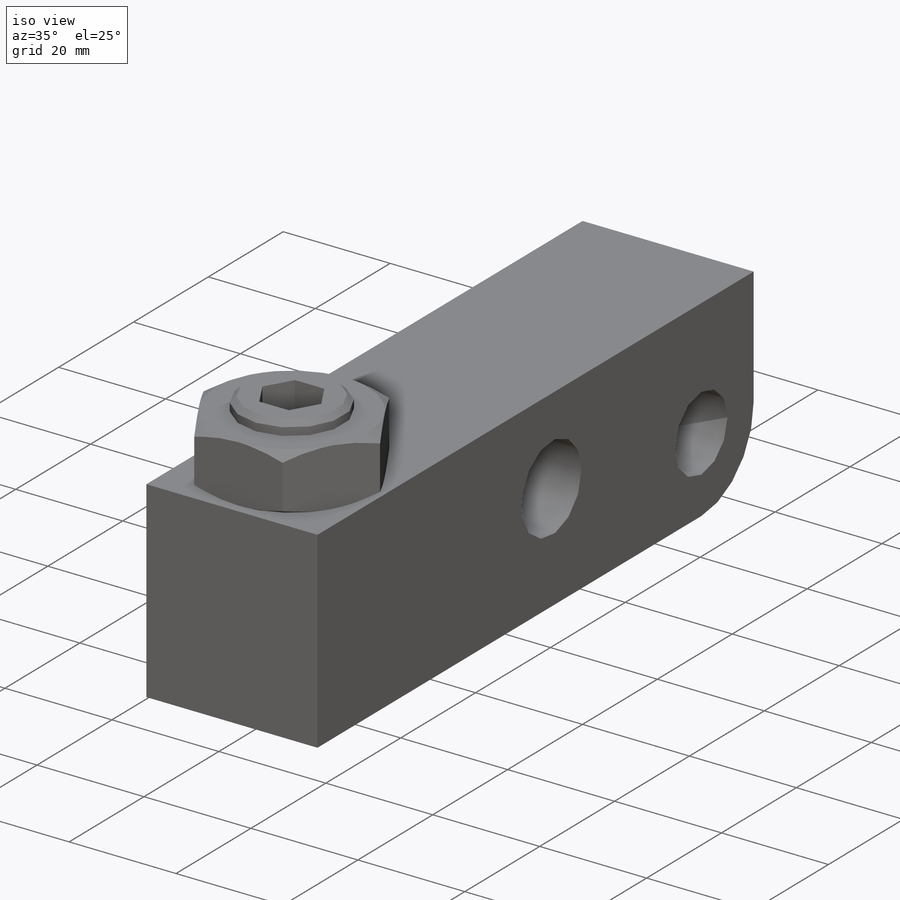
[diagram: iso view]
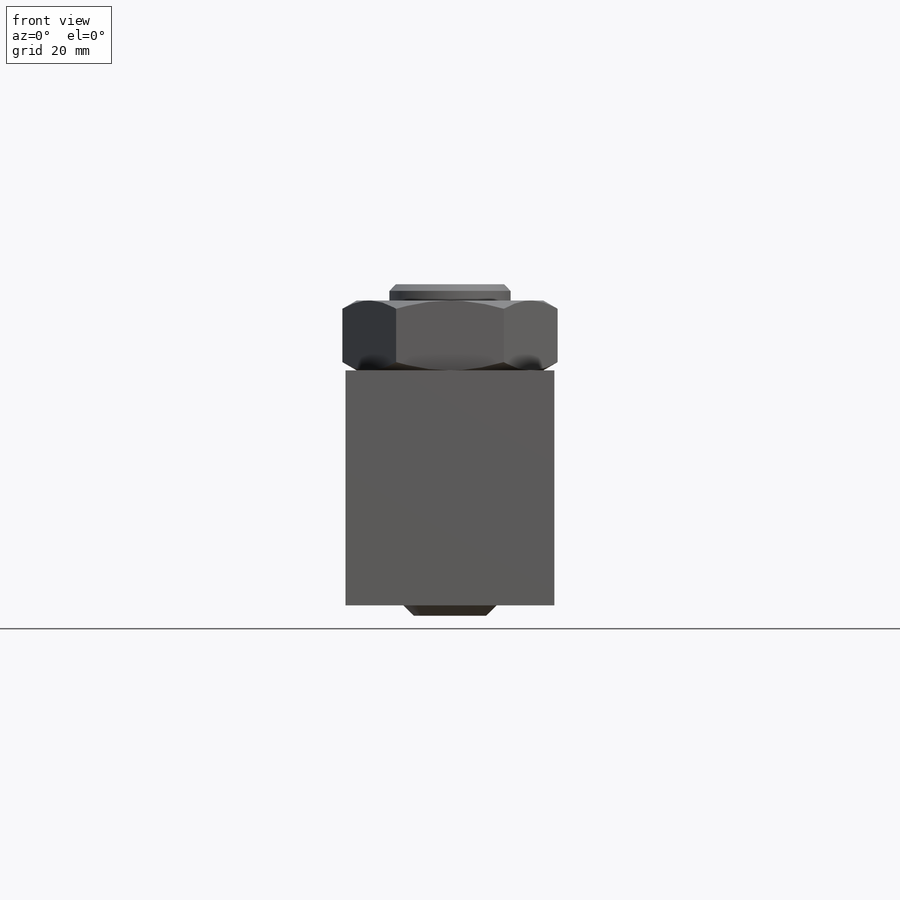
[diagram: front view]
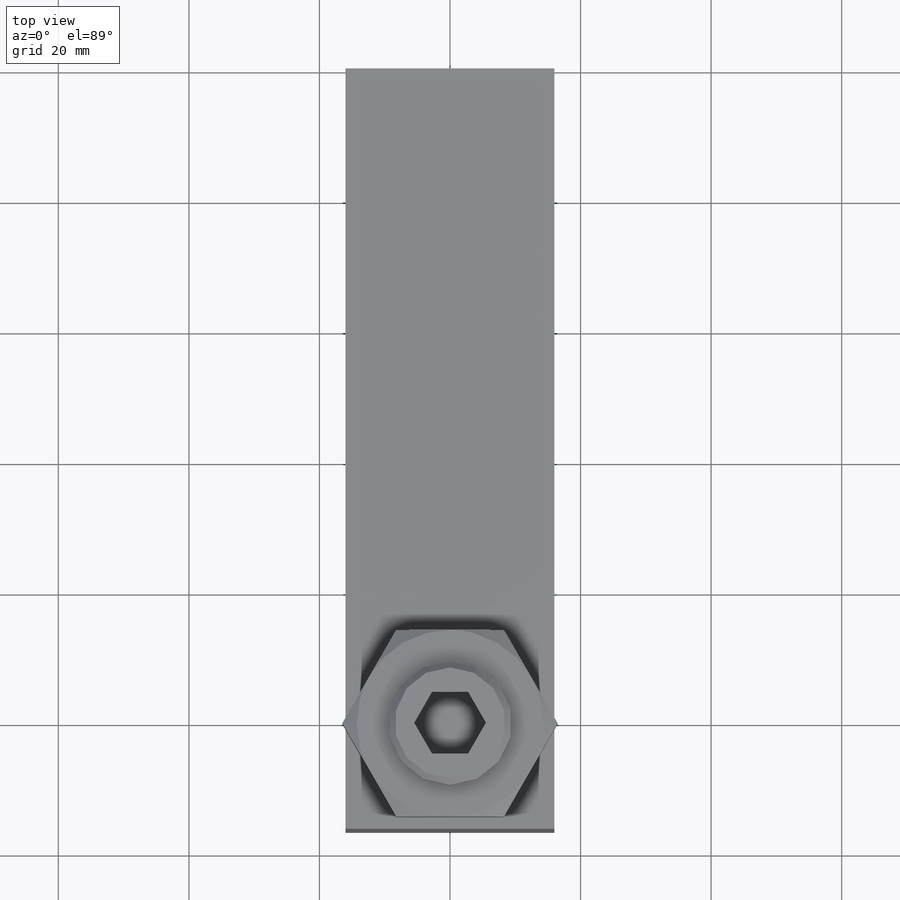
[diagram: top view]
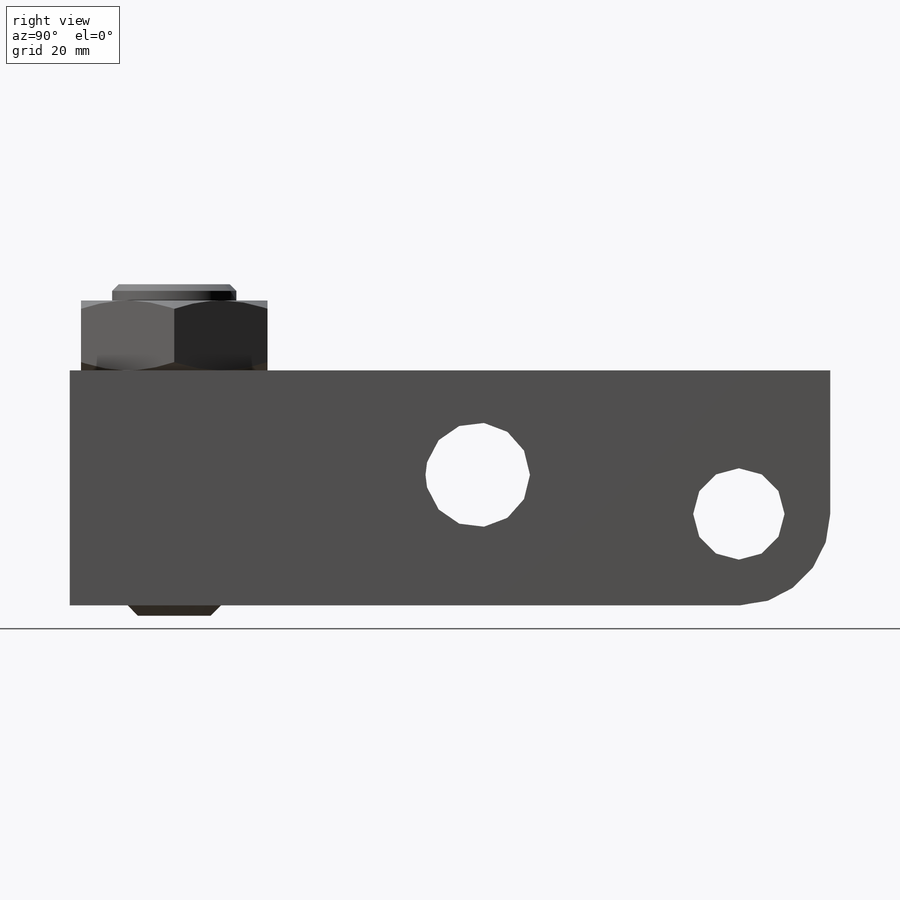
[diagram: right view]
SOLIDWORKS PART (.sldprt)
format: sldprt  version: not decoded by parser v0  size: 381,952 bytes
history: native  units: mm
features: sketch x9, cut_extrude x3, extrude x2, chamfer x2, material x1, fillet x1, hole x1, revolve x1, cut_revolve x1 (+11 scaffold rows collapsed)
feature tree (32):
  scaffold x11  (default folders/planes/origin — collapsed)
  material  "AISI 1020"
  sketch  "S2D0001"  dims[D1=35.9918mm D2=116.5098mm]
  extrude  "Extrude1"  Depth=16mm
  sketch  "Sketch2"  dims[c1.D1=13.9954mm c1.D4=16.002mm c1.D6=5.0mm c1.D5=5.0mm c1.D2=14.0mm c1.D3=14.0mm c2.D5=15.0mm c2.D6=5.9944mm c3.D5=40.005mm]
  cut_extrude  "Cut-Extrude1"  Depth=100mm
  sketch  "Sketch5"  dims[c1.D3=2.65mm c1.D1=14.3002mm c1.D2=8.8499mm c2.D3=37.9476mm]
  cut_extrude  "Cut-Extrude3"  Depth=30.8102mm
  fillet  "Fillet2"  Radius=13.9954mm
  hole  "21/32 (0.65625) Diameter Hole1"  Diameter=16.66875mm Depth=35.9918mm
  sketch  "Sketch14"  dims[D1=100.5078mm D2=16.002mm]
  sketch  "Sketch13"  dims[hole-wizard template sketch: 59 standard entries collapsed; hole parameters kept: c18.Thru Hole Dia.=~16.66875mm c18.Thru Hole Depth=35.9918mm]
  sketch  "Sketch6"  dims[c1.D1=50.8mm c1.D2=100.5mm c1.D3=1.6002mm c1.D4=19.05mm c1.D5=1.075mm c2.D5=45.0deg c2.D6=2.125mm c2.D7=13.25mm c3.D6=11.1252mm c3.D5=7.5mm c4.D5=135.0deg]
  revolve  "Revolve1"  Angle=360deg
  sketch  "Sketch8"  dims[D1=9.525mm]
  cut_extrude  "Cut-Extrude5"  Depth=8.382mm
  chamfer  "Chamfer1"  Distance=1.0287mm Angle=45deg
  sketch  "Sketch10"  dims[D1=10.0mm D2=28.575mm]
  extrude  "Extrude2"  Depth=10.7188mm
  sketch  "Sketch12"  dims[c1.D1=~3.155664mm c2.D1=30.0deg c2.D2=1.0mm]
  cut_revolve  "Cut-Revolve1"  Angle=360deg
  chamfer  "Chamfer2"  Distance=0.762mm Angle=45deg
decode coverage: 20 of 20 modeling features carry decoded parameters
note: ~ marks probable driven/reference dimensions
note: suppression state not decoded; provenance and decode notes live in map.json
